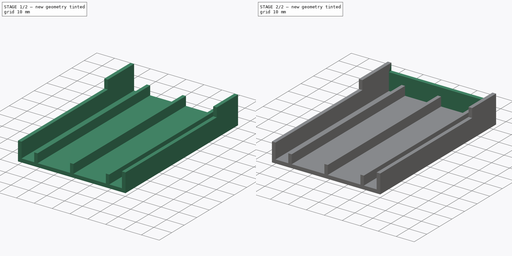
[diagram: build sequence overview — one tinted view per stage of 2, left to right]
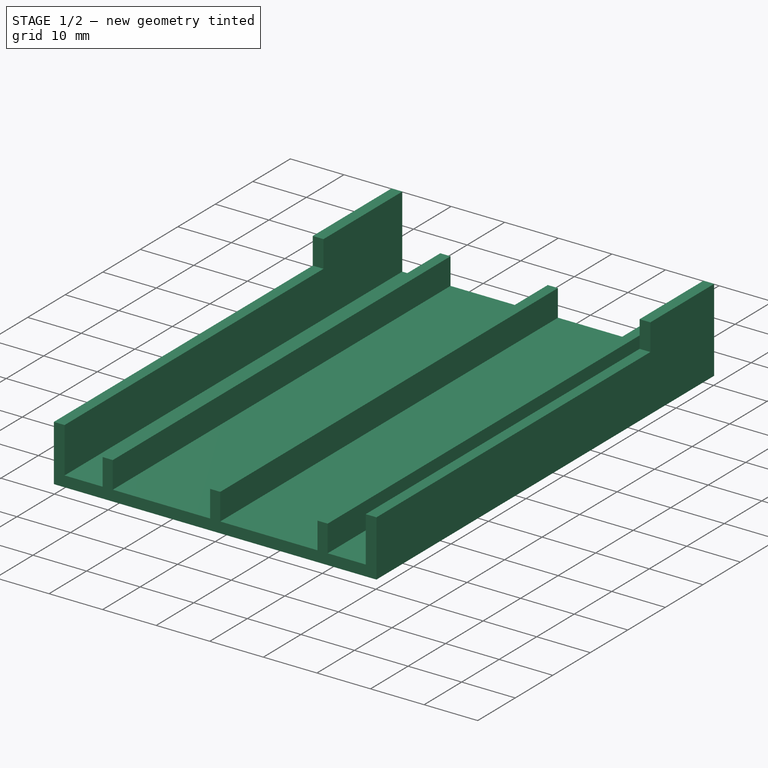
[diagram: stage 1 of 2 — iso view after this stage's code; geometry added in this stage tinted green]
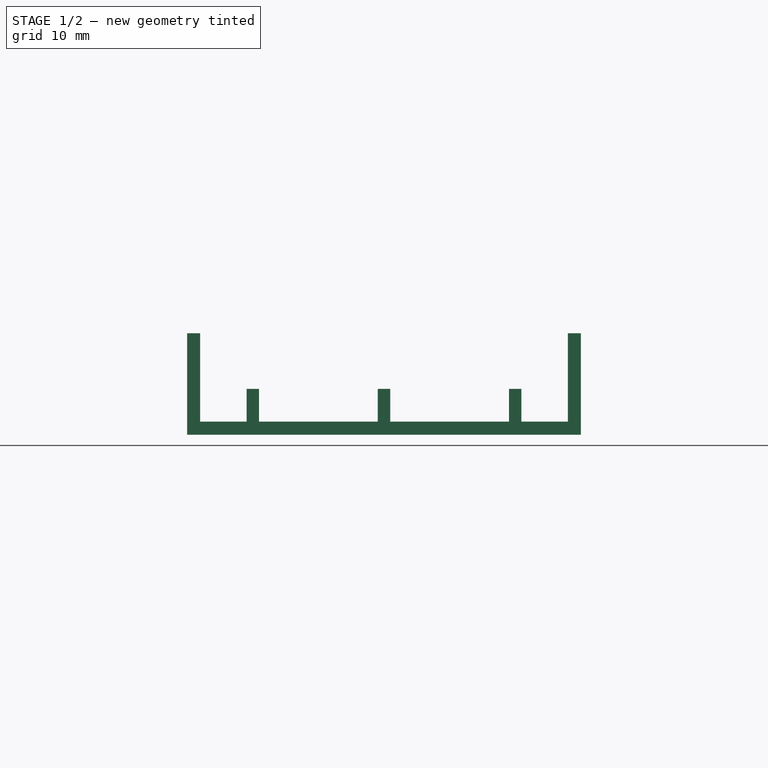
[diagram: stage 1 of 2 — front view after this stage's code; geometry added in this stage tinted green]
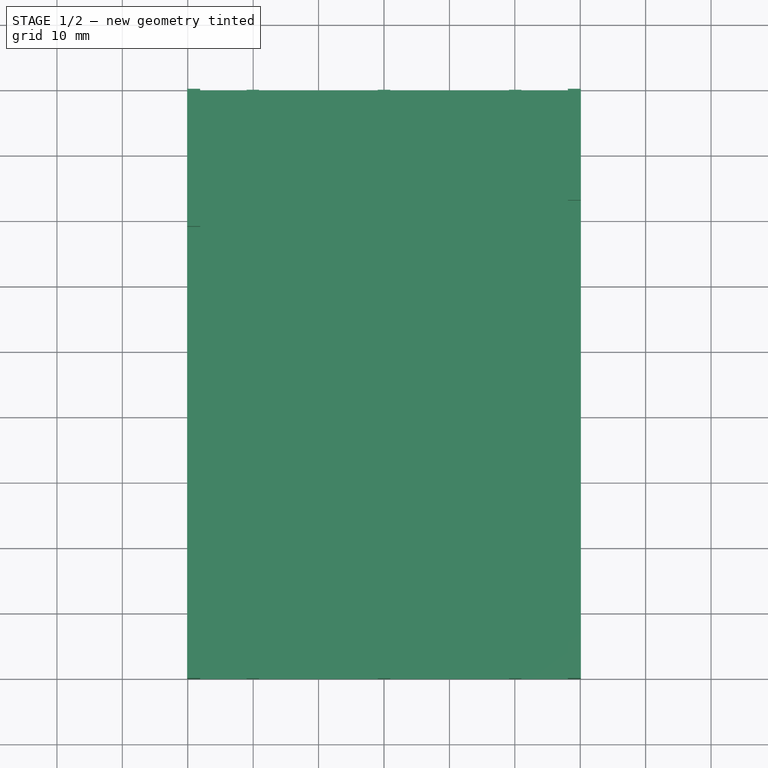
[diagram: stage 1 of 2 — top view after this stage's code; geometry added in this stage tinted green]
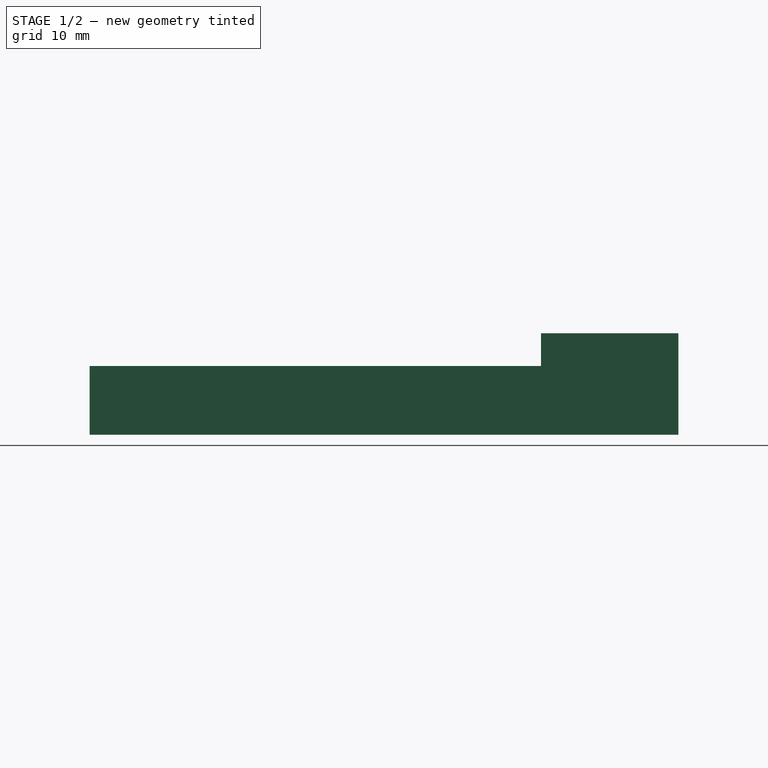
[diagram: stage 1 of 2 — right view after this stage's code; geometry added in this stage tinted green]
FCSTD DOCUMENT  (FreeCAD 1.0R39109 (Git))
Label: 01 Base plate v1
License: All rights reserved
LicenseURL: https://en.wikipedia.org/wiki/All_rights_reserved
objects: Sketcher::SketchObject×4, PartDesign::Pad×3, PartDesign::Pocket×1, PartDesign::Body×1
note: 21 computed .brp shape members not serialized (recipe doc carries the construction recipe); baked Part::Feature solids carry a one-line shape summary decoded from their .brp

FEATURE [Sketcher::SketchObject] Sketch
  ArcFitTolerance = 1e-06
  AttachmentSupport = -> [XZ_Plane]
  FullyConstrained = true
  MakeInternals = false
  MapMode = 5
  Placement = pos=(0,0,0) rot=(1,0,0;1.5708rad)
  sketch-geometry (20):
    g0: LineSegment StartX=-30.1 StartY=0 StartZ=0 EndX=30.1 EndY=0 EndZ=0
    g1: LineSegment StartX=-30.1 StartY=0 StartZ=0 EndX=-30.1 EndY=15.5 EndZ=0
    g2: LineSegment StartX=30.1 StartY=0 StartZ=0 EndX=30.1 EndY=15.5 EndZ=0
    g3: LineSegment StartX=-30.1 StartY=15.5 StartZ=0 EndX=-28.1 EndY=15.5 EndZ=0
    g4: LineSegment StartX=-28.1 StartY=15.5 StartZ=0 EndX=-28.1 EndY=2 EndZ=0
    g5: LineSegment StartX=30.1 StartY=15.5 StartZ=0 EndX=28.1 EndY=15.5 EndZ=0
    g6: LineSegment StartX=28.1 StartY=15.5 StartZ=0 EndX=28.1 EndY=2 EndZ=0
    g7: LineSegment StartX=-28.1 StartY=2 StartZ=0 EndX=28.1 EndY=2 EndZ=0
    g8: LineSegment StartX=-0.95 StartY=2 StartZ=0 EndX=-0.95 EndY=7 EndZ=0
    g9: LineSegment StartX=0.95 StartY=7 StartZ=0 EndX=0.95 EndY=2 EndZ=0
    g10: LineSegment StartX=-0.95 StartY=7 StartZ=0 EndX=0.95 EndY=7 EndZ=0
    g11: LineSegment StartX=-0.95 StartY=2 StartZ=0 EndX=0.95 EndY=2 EndZ=0
    g12: LineSegment StartX=-21 StartY=2 StartZ=0 EndX=-21 EndY=7 EndZ=0
    g13: LineSegment StartX=-21 StartY=7 StartZ=0 EndX=-19.1 EndY=7 EndZ=0
    g14: LineSegment StartX=-19.1 StartY=7 StartZ=0 EndX=-19.1 EndY=2 EndZ=0
    g15: LineSegment StartX=-19.1 StartY=2 StartZ=0 EndX=-21 EndY=2 EndZ=0
    g16: LineSegment StartX=21 StartY=2 StartZ=0 EndX=21 EndY=7 EndZ=0
    g17: LineSegment StartX=21 StartY=7 StartZ=0 EndX=19.1 EndY=7 EndZ=0
    g18: LineSegment StartX=19.1 StartY=7 StartZ=0 EndX=19.1 EndY=2 EndZ=0
    g19: LineSegment StartX=19.1 StartY=2 StartZ=0 EndX=21 EndY=2 EndZ=0
  constraints (60):
    c: Distance(g0) = 60.2
    c: Horizontal(g0)
    c: DistanceY(g-1,g0) = 0
    c: DistanceX(g0,g-1) = 30.1
    c: Distance(g1) = 15.5
    c: Coincident(g1,g0)
    c: Vertical(g1)
    c: Distance(g2) = 15.5
    c: Coincident(g2,g0)
    c: Vertical(g2)
    c: Distance(g3) = 2
    c: Coincident(g3,g1)
    c: Horizontal(g3)
    c: Distance(g4) = 13.5
    c: Coincident(g4,g3)
    c: Vertical(g4)
    c: Distance(g5) = 2
    c: Coincident(g5,g2)
    c: Horizontal(g5)
    c: Distance(g6) = 13.5
    c: Coincident(g6,g5)
    c: Vertical(g6)
    c: Coincident(g7,g4)
    c: Coincident(g7,g6)
    c: Distance(g8) = 5
    c: Vertical(g8)
    c: Distance(g9) = 5
    c: Vertical(g9)
    c: DistanceX(g8,g9) = 1.9
    c: Coincident(g10,g8)
    c: Coincident(g10,g9)
    c: Horizontal(g10)
    c: DistanceY(g-1,g8) = 2
    c: DistanceX(g8,g-1) = 0.95
    c: Coincident(g11,g8)
    c: Coincident(g11,g9)
    c: Distance(g12) = 5
    c: Vertical(g12)
    c: PointOnObject(g12,g7)
    c: DistanceX(g4,g12) = 7.1
    c: Distance(g13) = 1.9
    c: Coincident(g13,g12)
    c: Horizontal(g13)
    c: Coincident(g14,g13)
    c: PointOnObject(g14,g7)
    c: Vertical(g14)
    c: Coincident(g15,g14)
    c: Coincident(g15,g12)
    c: Distance(g16) = 5
    c: Vertical(g16)
    c: PointOnObject(g16,g7)
    c: DistanceX(g16,g6) = 7.1
    c: Distance(g17) = 1.9
    c: Coincident(g17,g16)
    c: Horizontal(g17)
    c: Coincident(g18,g17)
    c: PointOnObject(g18,g7)
    c: Vertical(g18)
    c: Coincident(g19,g18)
    c: Coincident(g19,g16)
FEATURE [PartDesign::Pad] Pad
  Direction = (0,-1,2e-16)
  Length = 90
  Length2 = 10
  Placement = pos=(0,0,0) rot=(1,0,0;1.5708rad)
  Profile = -> Sketch
  ReferenceAxis = -> Sketch [N_Axis]
  Refine = true
  Suppressed = false
  Type = 0
FEATURE [Sketcher::SketchObject] Sketch001
  ArcFitTolerance = 1e-06
  AttachmentSupport = -> [Pad]
  FullyConstrained = true
  MakeInternals = false
  MapMode = 5
  Placement = pos=(0,6.8e-15,15.5) rot=(0,0,1;3.14159rad)
  sketch-geometry (8):
    g0: LineSegment StartX=28.1 StartY=21 StartZ=0 EndX=30.1 EndY=21 EndZ=0
    g1: LineSegment StartX=30.1 StartY=21 StartZ=0 EndX=30.1 EndY=90 EndZ=0
    g2: LineSegment StartX=30.1 StartY=90 StartZ=0 EndX=28.1 EndY=90 EndZ=0
    g3: LineSegment StartX=28.1 StartY=90 StartZ=0 EndX=28.1 EndY=21 EndZ=0
    g4: LineSegment StartX=-30.1 StartY=17 StartZ=0 EndX=-28.1 EndY=17 EndZ=0
    g5: LineSegment StartX=-28.1 StartY=17 StartZ=0 EndX=-28.1 EndY=90 EndZ=0
    g6: LineSegment StartX=-28.1 StartY=90 StartZ=0 EndX=-30.1 EndY=90 EndZ=0
    g7: LineSegment StartX=-30.1 StartY=90 StartZ=0 EndX=-30.1 EndY=17 EndZ=0
  constraints (24):
    c: Coincident(g0,g1)
    c: Coincident(g1,g2)
    c: Coincident(g2,g3)
    c: Coincident(g3,g0)
    c: Horizontal(g0)
    c: Horizontal(g2)
    c: Vertical(g1)
    c: Vertical(g3)
    c: Distance(g1,g3) = 2
    c: Distance(g0,g2) = 69
    c: DistanceX(g-1,g0) = 28.1
    c: DistanceY(g-1,g0) = 21
    c: Coincident(g4,g5)
    c: Coincident(g5,g6)
    c: Coincident(g6,g7)
    c: Coincident(g7,g4)
    c: Horizontal(g4)
    c: Horizontal(g6)
    c: Vertical(g5)
    c: Vertical(g7)
    c: Distance(g5,g7) = 2
    c: Distance(g4,g6) = 73
    c: DistanceY(g-1,g4) = 17
    c: DistanceX(g4,g-1) = 28.1
FEATURE [PartDesign::Pocket] Pocket
  BaseFeature = -> Pad
  Direction = (0,0,-1)
  Length = 5
  Length2 = 5
  Placement = pos=(0,0,0) rot=(1,0,0;1.5708rad)
  Profile = -> Sketch001
  ReferenceAxis = -> Sketch001 [N_Axis]
  Refine = true
  Suppressed = false
  Type = 0
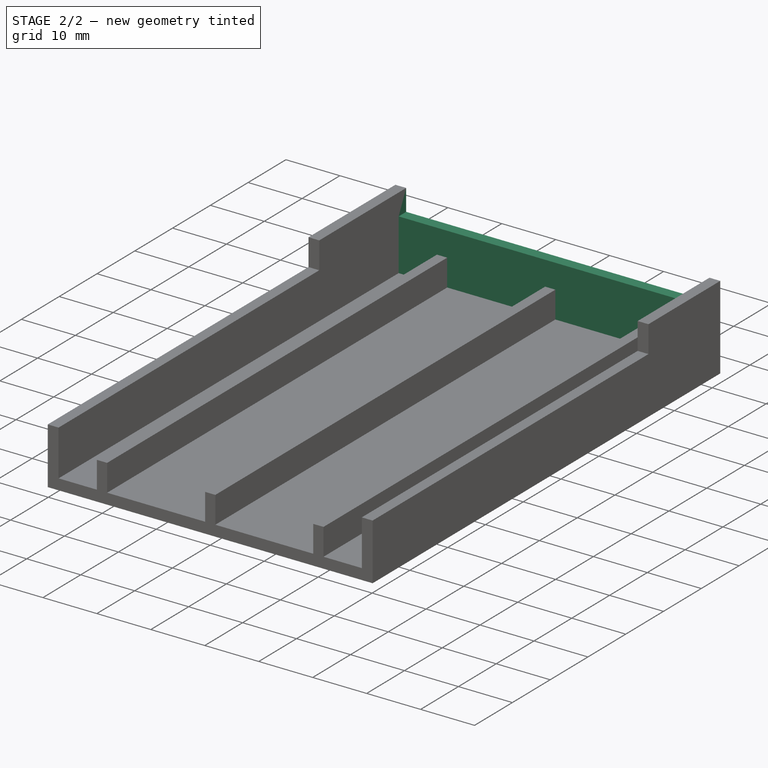
[diagram: stage 2 of 2 — iso view after this stage's code; geometry added in this stage tinted green]
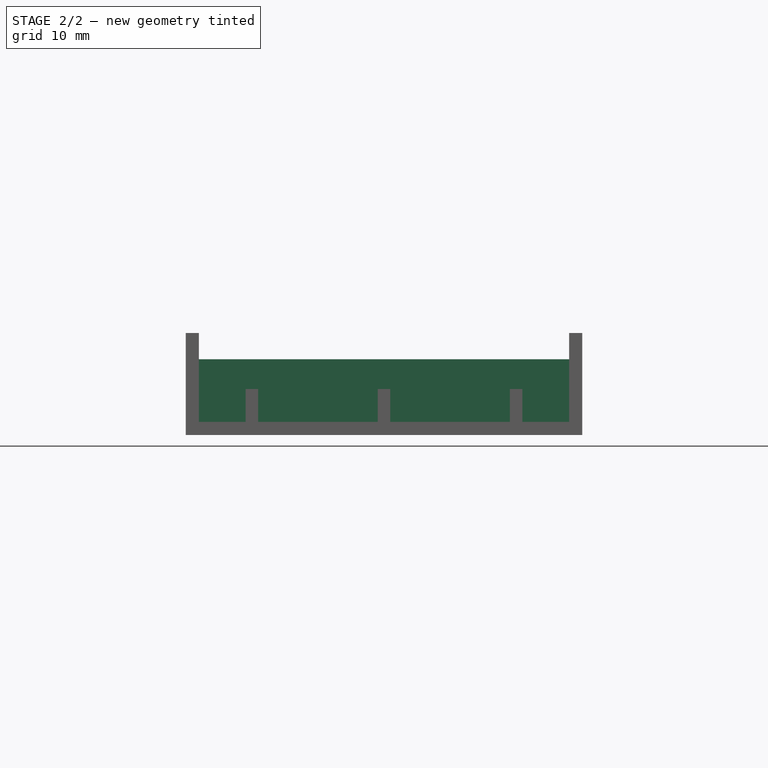
[diagram: stage 2 of 2 — front view after this stage's code; geometry added in this stage tinted green]
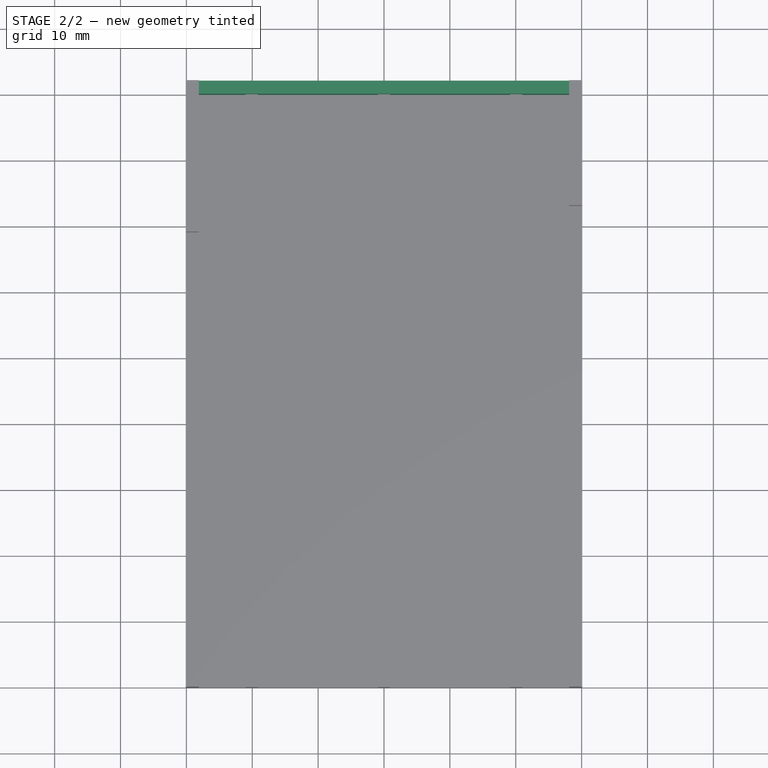
[diagram: stage 2 of 2 — top view after this stage's code; geometry added in this stage tinted green]
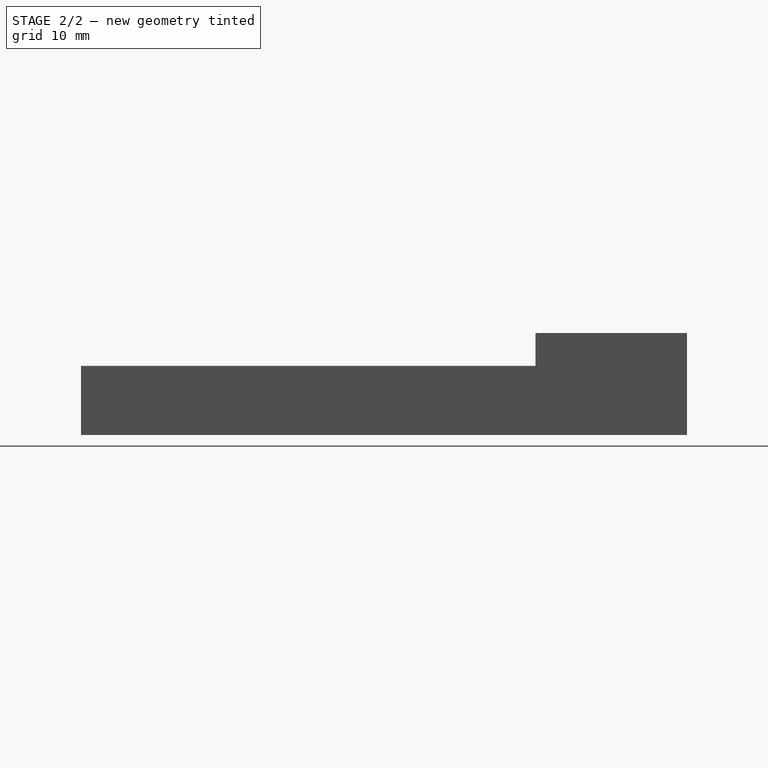
[diagram: stage 2 of 2 — right view after this stage's code; geometry added in this stage tinted green]
FEATURE [Sketcher::SketchObject] Sketch002
  ArcFitTolerance = 1e-06
  AttachmentSupport = -> [Pocket]
  FullyConstrained = true
  MakeInternals = false
  MapMode = 5
  Placement = pos=(0,0,0) rot=(-1,0,0;1.5708rad)
  sketch-geometry (4):
    g0: LineSegment StartX=-30.1 StartY=0 StartZ=0 EndX=-30.1 EndY=-11.5 EndZ=0
    g1: LineSegment StartX=-30.1 StartY=-11.5 StartZ=0 EndX=30.1 EndY=-11.5 EndZ=0
    g2: LineSegment StartX=30.1 StartY=-11.5 StartZ=0 EndX=30.1 EndY=0 EndZ=0
    g3: LineSegment StartX=30.1 StartY=0 StartZ=0 EndX=-30.1 EndY=0 EndZ=0
  constraints (12):
    c: Coincident(g0,g1)
    c: Coincident(g1,g2)
    c: Coincident(g2,g3)
    c: Coincident(g3,g0)
    c: Vertical(g0)
    c: Vertical(g2)
    c: Horizontal(g1)
    c: Horizontal(g3)
    c: Distance(g0,g2) = 60.2
    c: Distance(g1,g3) = 11.5
    c: DistanceX(g0,g-1) = 30.1
    c: DistanceY(g0,g-1) = 0
FEATURE [PartDesign::Pad] Pad001
  BaseFeature = -> Pocket
  Direction = (0,1,2e-16)
  Length = 2
  Length2 = 10
  Placement = pos=(0,0,0) rot=(1,0,0;1.5708rad)
  Profile = -> Sketch002
  ReferenceAxis = -> Sketch002 [N_Axis]
  Refine = true
  Suppressed = false
  Type = 0
FEATURE [Sketcher::SketchObject] Sketch004
  ArcFitTolerance = 1e-06
  FullyConstrained = true
  MakeInternals = false
  MapMode = 5
  Placement = pos=(0,0,11.5) rot=(0,0,1;3.14159rad)
  sketch-geometry (8):
    g0: LineSegment StartX=-30.1 StartY=-2 StartZ=0 EndX=-28.1 EndY=-2 EndZ=0
    g1: LineSegment StartX=-28.1 StartY=-2 StartZ=0 EndX=-28.1 EndY=0 EndZ=0
    g2: LineSegment StartX=-28.1 StartY=0 StartZ=0 EndX=-30.1 EndY=0 EndZ=0
    g3: LineSegment StartX=-30.1 StartY=0 StartZ=0 EndX=-30.1 EndY=-2 EndZ=0
    g4: LineSegment StartX=28.1 StartY=0 StartZ=0 EndX=28.1 EndY=-2 EndZ=0
    g5: LineSegment StartX=28.1 StartY=-2 StartZ=0 EndX=30.1 EndY=-2 EndZ=0
    g6: LineSegment StartX=30.1 StartY=-2 StartZ=0 EndX=30.1 EndY=0 EndZ=0
    g7: LineSegment StartX=30.1 StartY=0 StartZ=0 EndX=28.1 EndY=0 EndZ=0
  constraints (24):
    c: Coincident(g0,g1)
    c: Coincident(g1,g2)
    c: Coincident(g2,g3)
    c: Coincident(g3,g0)
    c: Horizontal(g0)
    c: Horizontal(g2)
    c: Vertical(g1)
    c: Vertical(g3)
    c: Distance(g1,g3) = 2
    c: Distance(g0,g2) = 2
    c: DistanceX(g0,g-1) = 30.1
    c: DistanceY(g2,g-1) = 0
    c: Coincident(g4,g5)
    c: Coincident(g5,g6)
    c: Coincident(g6,g7)
    c: Coincident(g7,g4)
    c: Vertical(g4)
    c: Vertical(g6)
    c: Horizontal(g5)
    c: Horizontal(g7)
    c: Distance(g4,g6) = 2
    c: Distance(g5,g7) = 2
    c: DistanceX(g-1,g5) = 30.1
    c: DistanceY(g6,g-1) = 0
FEATURE [PartDesign::Pad] Pad002
  BaseFeature = -> Pad001
  Direction = (0,0,1)
  Length = 4
  Length2 = 10
  Placement = pos=(0,0,0) rot=(1,0,0;1.5708rad)
  Profile = -> Sketch004
  ReferenceAxis = -> Sketch004 [N_Axis]
  Refine = true
  Suppressed = false
  Type = 0
FEATURE [PartDesign::Body] Body
  AllowCompound = false
  Group = -> [Sketch,Pad,Sketch001,Pocket,Sketch002,Pad001,Sketch004,Pad002]
  Origin = -> Origin
  Tip = -> Pad002
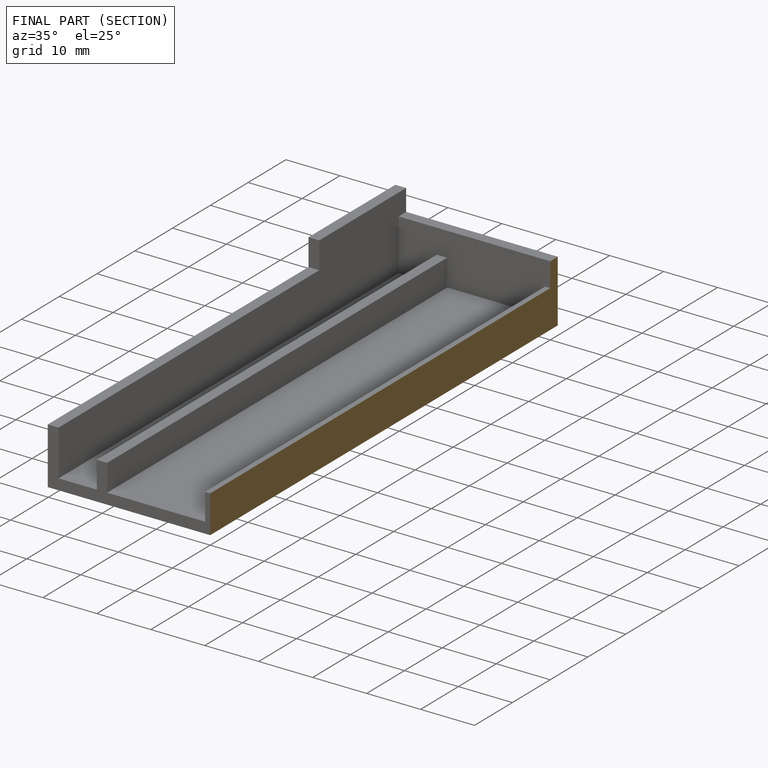
[diagram: finished part — half-section view (interior)]
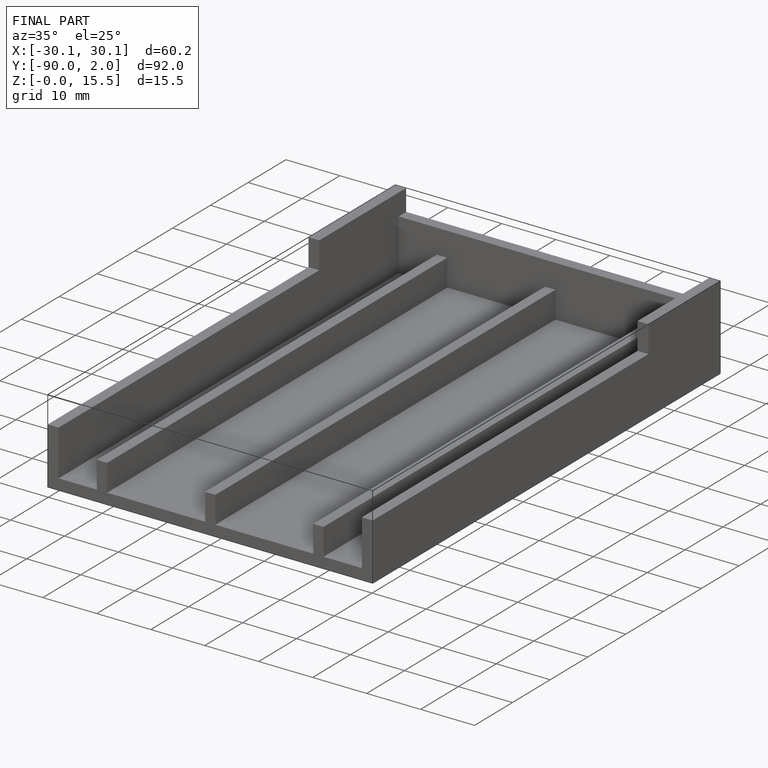
[diagram: finished part — iso view with bounding-box wireframe]
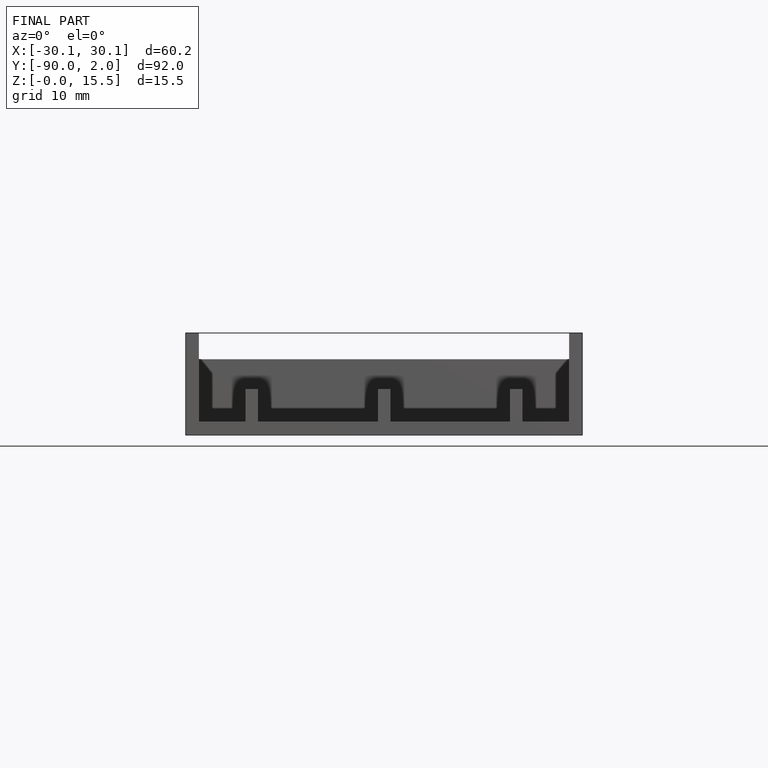
[diagram: finished part — front view with bounding-box wireframe]
